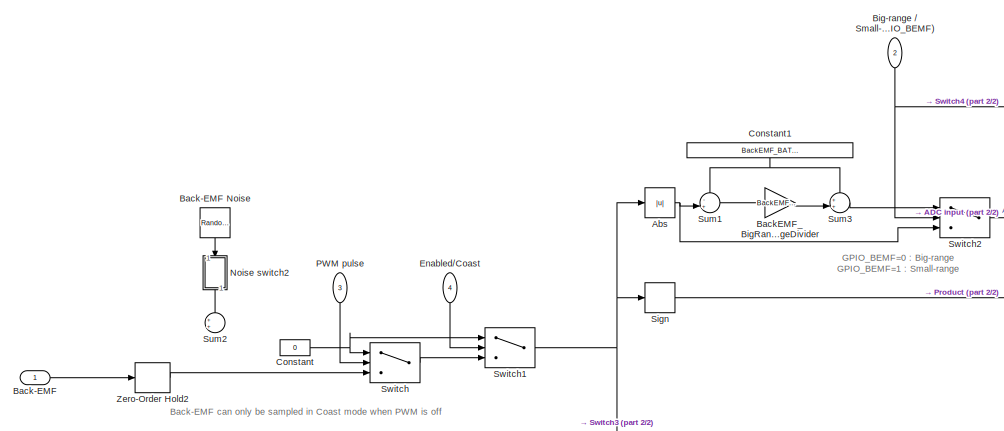
[diagram: root canvas - part 1/2, left side, full height]
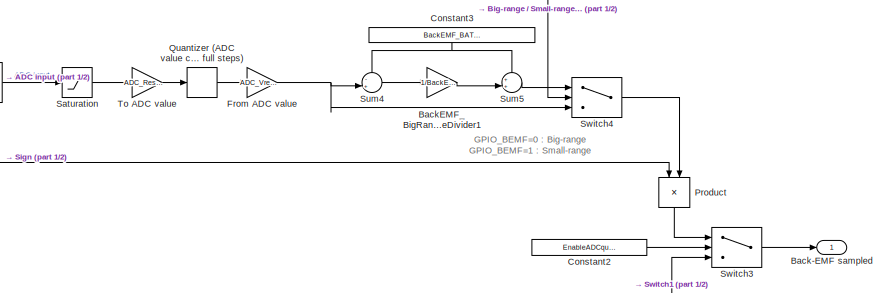
[diagram: root canvas - part 2/2, middle right region]
MODEL slx_e072a266c902
KIND model
CONFIG AbsTol = auto
CONFIG EnableMultiTasking = off
CONFIG FixedStep = auto
CONFIG InitFcn = Parameters_Model\nParameters_Simulation\nParameters_Estimators
CONFIG MaxStep = auto
CONFIG MinStep = auto
CONFIG PreLoadFcn = modelDir = fileparts(get_param(bdroot, 'FileName'));\naddpath(fullfile(modelDir,'../../Parameters'));\n\nParameters_Model\nParameters_Simulation\nParameters_Estimators
CONFIG RelTol = 1e-3
CONFIG SampleTimeConstraint = Unconstrained
CONFIG Solver = VariableStepAuto
CONFIG SolverName = VariableStepAuto
CONFIG StartTime = 0.0
CONFIG StopTime = 10.0
BLOCK [Abs] Abs
  SaturateOnIntegerOverflow = off
BLOCK [Inport] Back-EMF
  IconDisplay = Port number
BLOCK [RandomNumber] Back-EMF Noise
  Commented = on
  SampleTime = Ts_backemf
  Seed = 42
  Variance = sensor_sigma2_backemf
BLOCK [Outport] Back-EMF sampled
  IconDisplay = Port number
  VectorParamsAs1DForOutWhenUnconnected = off
BLOCK [Gain] BackEMF_BigRange_VoltageDivider
  Gain = BackEMF_BigRange_VoltageDivider
  OutDataTypeStr = Inherit: Inherit via internal rule
  ParamDataTypeStr = Inherit: Inherit via internal rule
  SaturateOnIntegerOverflow = off
BLOCK [Gain] BackEMF_BigRange_VoltageDivider1
  Gain = 1/BackEMF_BigRange_VoltageDivider
  OutDataTypeStr = Inherit: Inherit via internal rule
  ParamDataTypeStr = Inherit: Inherit via internal rule
  SaturateOnIntegerOverflow = off
BLOCK [Inport] Big-range // Small-range  (GPIO_BEMF)
  IconDisplay = Port number
  OutDataTypeStr = boolean
  Port = 2
BLOCK [Constant] Constant
  Value = 0
BLOCK [Constant] Constant1
  Value = BackEMF_BAT30_ForwardVoltage
BLOCK [Constant] Constant2
  Value = EnableADCquantization
BLOCK [Constant] Constant3
  Value = BackEMF_BAT30_ForwardVoltage
BLOCK [Inport] Enabled//Coast
  IconDisplay = Port number
  OutDataTypeStr = boolean
  Port = 4
BLOCK [Gain] From ADC value
  Gain = ADC_Vref/ADC_Resolution
  OutDataTypeStr = Inherit: Inherit via internal rule
  ParamDataTypeStr = Inherit: Inherit via internal rule
  SaturateOnIntegerOverflow = off
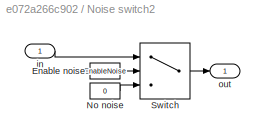
BLOCK [SubSystem] Noise switch2
  Commented = on
  Ports = [1, 1]
  RequestExecContextInheritance = off
BLOCK [Constant] Noise switch2/Enable noise
  Value = EnableNoise
BLOCK [Constant] Noise switch2/No noise
  Value = 0
BLOCK [Switch] Noise switch2/Switch
  Criteria = u2 > Threshold
  InputSameDT = off
  SaturateOnIntegerOverflow = off
BLOCK [Inport] Noise switch2/in
  IconDisplay = Port number
BLOCK [Outport] Noise switch2/out
  IconDisplay = Port number
  VectorParamsAs1DForOutWhenUnconnected = off
BLOCK [Inport] PWM pulse
  IconDisplay = Port number
  OutDataTypeStr = int8
  Port = 3
BLOCK [Product] Product
  InputSameDT = off
  OutDataTypeStr = Inherit: Inherit via internal rule
  Ports = [2, 1]
  RndMeth = Floor
  SaturateOnIntegerOverflow = off
BLOCK [Quantizer] Quantizer (ADC value can only be measured in full steps)
  QuantizationInterval = 1
BLOCK [Saturate] Saturation
  InputPortMap = u0
  LowerLimit = 0
  Ports = [1, 1]
  UpperLimit = ADC_Vref
BLOCK [Signum] Sign
BLOCK [Sum] Sum1
  IconShape = round
  InputSameDT = off
  Inputs = -+|
  OutDataTypeStr = Inherit: Inherit via internal rule
  Ports = [2, 1]
  SaturateOnIntegerOverflow = off
BLOCK [Sum] Sum2
  Commented = on
  IconShape = round
  InputSameDT = off
  Inputs = ++|
  OutDataTypeStr = Inherit: Inherit via internal rule
  Ports = [2, 1]
  SaturateOnIntegerOverflow = off
BLOCK [Sum] Sum3
  IconShape = round
  InputSameDT = off
  Inputs = ++|
  OutDataTypeStr = Inherit: Inherit via internal rule
  Ports = [2, 1]
  SaturateOnIntegerOverflow = off
BLOCK [Sum] Sum4
  IconShape = round
  InputSameDT = off
  Inputs = -+|
  OutDataTypeStr = Inherit: Inherit via internal rule
  Ports = [2, 1]
  SaturateOnIntegerOverflow = off
BLOCK [Sum] Sum5
  IconShape = round
  InputSameDT = off
  Inputs = ++|
  OutDataTypeStr = Inherit: Inherit via internal rule
  Ports = [2, 1]
  SaturateOnIntegerOverflow = off
BLOCK [Switch] Switch
  Criteria = u2 ~= 0
  InputSameDT = off
  SaturateOnIntegerOverflow = off
BLOCK [Switch] Switch1
  Criteria = u2 ~= 0
  InputSameDT = off
  SaturateOnIntegerOverflow = off
BLOCK [Switch] Switch2
  Criteria = u2 ~= 0
  InputSameDT = off
  SaturateOnIntegerOverflow = off
BLOCK [Switch] Switch3
  Criteria = u2 ~= 0
  InputSameDT = off
  SaturateOnIntegerOverflow = off
BLOCK [Switch] Switch4
  Criteria = u2 ~= 0
  InputSameDT = off
  SaturateOnIntegerOverflow = off
BLOCK [Gain] To ADC value
  Gain = ADC_Resolution/ADC_Vref
  OutDataTypeStr = Inherit: Inherit via internal rule
  ParamDataTypeStr = Inherit: Inherit via internal rule
  SaturateOnIntegerOverflow = off
BLOCK [ZeroOrderHold] Zero-Order Hold2
  Commented = through
  SampleTime = Ts_backemf
ANNOTATION (root): Back-EMF can only be sampled in Coast mode when PWM is off
ANNOTATION (root): GPIO_BEMF=0 : Big-range GPIO_BEMF=1 : Small-range
NET Abs:1 -> Sum1:2, Switch2:3
LINE Back-EMF Noise:1 -> Noise switch2:1
LINE Back-EMF:1 -> Zero-Order Hold2:1
LINE BackEMF_BigRange_VoltageDivider1:1 -> Sum5:2
LINE BackEMF_BigRange_VoltageDivider:1 -> Sum3:2
NET Big-range // Small-range  (GPIO_BEMF):1 -> Switch2:2, Switch4:2
NET Constant1:1 -> Sum1:1, Sum3:1
LINE Constant2:1 -> Switch3:2
NET Constant3:1 -> Sum4:1, Sum5:1
NET Constant:1 -> Switch1:1, Switch:1
LINE Enabled//Coast:1 -> Switch1:2
NET From ADC value:1 -> Sum4:2, Switch4:3
LINE Noise switch2/Enable noise:1 -> Noise switch2/Switch:2
LINE Noise switch2/No noise:1 -> Noise switch2/Switch:3
LINE Noise switch2/Switch:1 -> Noise switch2/out:1
LINE Noise switch2/in:1 -> Noise switch2/Switch:1
LINE Noise switch2:1 -> Sum2:1
LINE PWM pulse:1 -> Switch:2
LINE Product:1 -> Switch3:1
LINE Quantizer (ADC value can only be measured in full steps):1 -> From ADC value:1
LINE Saturation:1 -> To ADC value:1
LINE Sign:1 -> Product:1
LINE Sum1:1 -> BackEMF_BigRange_VoltageDivider:1
LINE Sum3:1 -> Switch2:1
LINE Sum4:1 -> BackEMF_BigRange_VoltageDivider1:1
LINE Sum5:1 -> Switch4:1
NET Switch1:1 -> Abs:1, Sign:1, Switch3:3
LINE Switch2:1 -> Saturation:1
LINE Switch3:1 -> Back-EMF sampled:1
LINE Switch4:1 -> Product:2
LINE Switch:1 -> Switch1:3
LINE To ADC value:1 -> Quantizer (ADC value can only be measured in full steps):1
LINE Zero-Order Hold2:1 -> Switch:3
note: NET lines group one-source signal fan-out (src -> all destinations, sorted); 1:1 wires keep LINE
